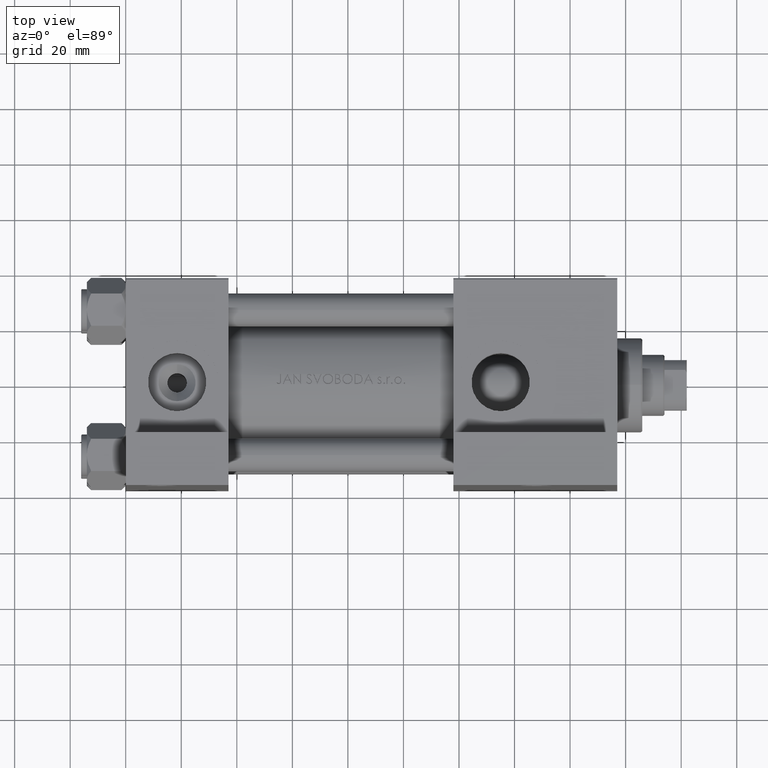
[diagram: clean part render]
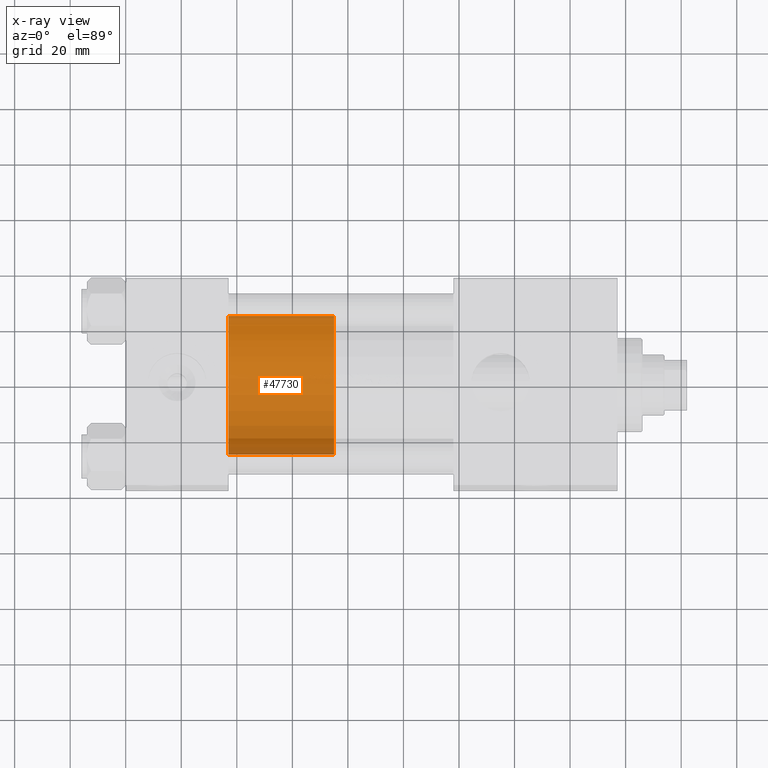
[diagram: x-ray — body ghosted, one internal face saturated and labeled with its STEP entity id]
A machine part, top view, then the same camera in x-ray: the body is ghosted and one INTERNAL B-rep face — a face not visible from any outside direction — is saturated and labeled: STEP entity #47730.
In plain terms, the highlighted cylindrical surface (partial cylindrical patch) has radius 25 mm, axis along (-1, 0, 0).
Its self-contained STEP definition (entity closure, byte-faithful):
#328 = EDGE_CURVE ( 'NONE', #4409, #16941, #40142, .T. ) ;
#3244 = DIRECTION ( 'NONE',  ( 1.000000000000000000, 0.000000000000000000, 0.000000000000000000 ) ) ;
#4409 = VERTEX_POINT ( 'NONE', #14529 ) ;
#7681 = EDGE_CURVE ( 'NONE', #4409, #31894, #9190, .T. ) ;
#9190 = LINE ( 'NONE', #47534, #26897 ) ;
#10455 = ORIENTED_EDGE ( 'NONE', *, *, #22348, .F. ) ;
#10686 = ORIENTED_EDGE ( 'NONE', *, *, #18119, .T. ) ;
#14529 = CARTESIAN_POINT ( 'NONE',  ( 25.00000000000000000, 3.061616997868383043E-15, 38.00000000000000000 ) ) ;
#14538 = CARTESIAN_POINT ( 'NONE',  ( 0.000000000000000000, 0.000000000000000000, 0.000000000000000000 ) ) ;
#14541 = VECTOR ( 'NONE', #20501, 1000.000000000000000 ) ;
#15042 = DIRECTION ( 'NONE',  ( -1.000000000000000000, 0.000000000000000000, 0.000000000000000000 ) ) ;
#15214 = AXIS2_PLACEMENT_3D ( 'NONE', #14538, #18992, #44896 ) ;
#16941 = VERTEX_POINT ( 'NONE', #20842 ) ;
#18119 = EDGE_CURVE ( 'NONE', #31894, #48817, #26357, .T. ) ;
#18187 = DIRECTION ( 'NONE',  ( 0.000000000000000000, 0.000000000000000000, 1.000000000000000000 ) ) ;
#18992 = DIRECTION ( 'NONE',  ( 0.000000000000000000, 0.000000000000000000, 1.000000000000000000 ) ) ;
#20501 = DIRECTION ( 'NONE',  ( -0.000000000000000000, -0.000000000000000000, -1.000000000000000000 ) ) ;
#20842 = CARTESIAN_POINT ( 'NONE',  ( -25.00000000000000000, 0.000000000000000000, 38.00000000000000000 ) ) ;
#22348 = EDGE_CURVE ( 'NONE', #16941, #48817, #43639, .T. ) ;
#22439 = AXIS2_PLACEMENT_3D ( 'NONE', #34198, #49157, #15042 ) ;
#24385 = DIRECTION ( 'NONE',  ( -0.000000000000000000, -0.000000000000000000, -1.000000000000000000 ) ) ;
#26357 = CIRCLE ( 'NONE', #15214, 25.00000000000000000 ) ;
#26897 = VECTOR ( 'NONE', #24385, 1000.000000000000000 ) ;
#28284 = AXIS2_PLACEMENT_3D ( 'NONE', #33362, #18187, #3244 ) ;
#30181 = CARTESIAN_POINT ( 'NONE',  ( -25.00000000000000000, 0.000000000000000000, 0.000000000000000000 ) ) ;
#31667 = ORIENTED_EDGE ( 'NONE', *, *, #328, .F. ) ;
#31894 = VERTEX_POINT ( 'NONE', #49259 ) ;
#33243 = EDGE_LOOP ( 'NONE', ( #31667, #39556, #10686, #10455 ) ) ;
#33362 = CARTESIAN_POINT ( 'NONE',  ( 0.000000000000000000, 0.000000000000000000, 38.00000000000000000 ) ) ;
#33467 = CYLINDRICAL_SURFACE ( 'NONE', #22439, 25.00000000000000000 ) ;
#34198 = CARTESIAN_POINT ( 'NONE',  ( 0.000000000000000000, 0.000000000000000000, 38.00000000000000000 ) ) ;
#39556 = ORIENTED_EDGE ( 'NONE', *, *, #7681, .T. ) ;
#40142 = CIRCLE ( 'NONE', #28284, 25.00000000000000000 ) ;
#43639 = LINE ( 'NONE', #47383, #14541 ) ;
#44896 = DIRECTION ( 'NONE',  ( 1.000000000000000000, 0.000000000000000000, 0.000000000000000000 ) ) ;
#44914 = FACE_OUTER_BOUND ( 'NONE', #33243, .T. ) ;
#47383 = CARTESIAN_POINT ( 'NONE',  ( -25.00000000000000000, 0.000000000000000000, 38.00000000000000000 ) ) ;
#47534 = CARTESIAN_POINT ( 'NONE',  ( 25.00000000000000000, 3.061616997868383043E-15, 38.00000000000000000 ) ) ;
#47730 = ADVANCED_FACE ( 'NONE', ( #44914 ), #33467, .T. ) ;
#48817 = VERTEX_POINT ( 'NONE', #30181 ) ;
#49157 = DIRECTION ( 'NONE',  ( -0.000000000000000000, -0.000000000000000000, -1.000000000000000000 ) ) ;
#49259 = CARTESIAN_POINT ( 'NONE',  ( 25.00000000000000000, 3.061616997868383043E-15, 0.000000000000000000 ) ) ;